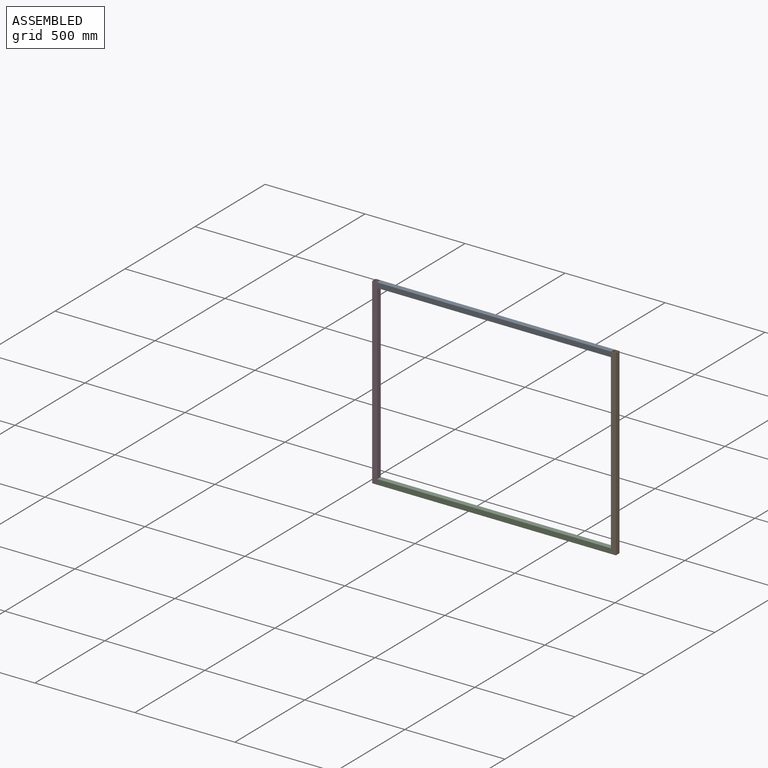
[diagram: assembled view]
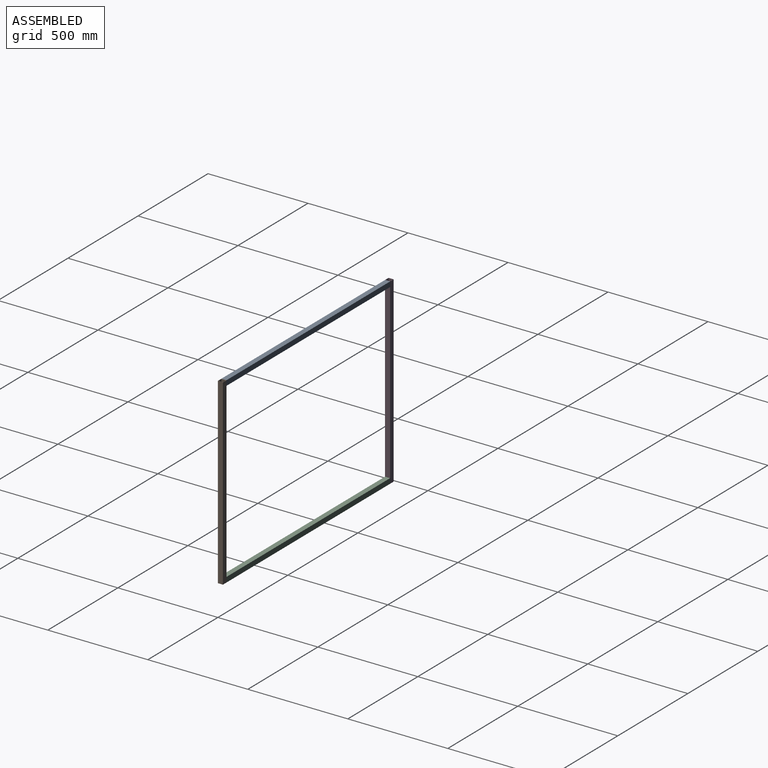
[diagram: assembled view, second angle]
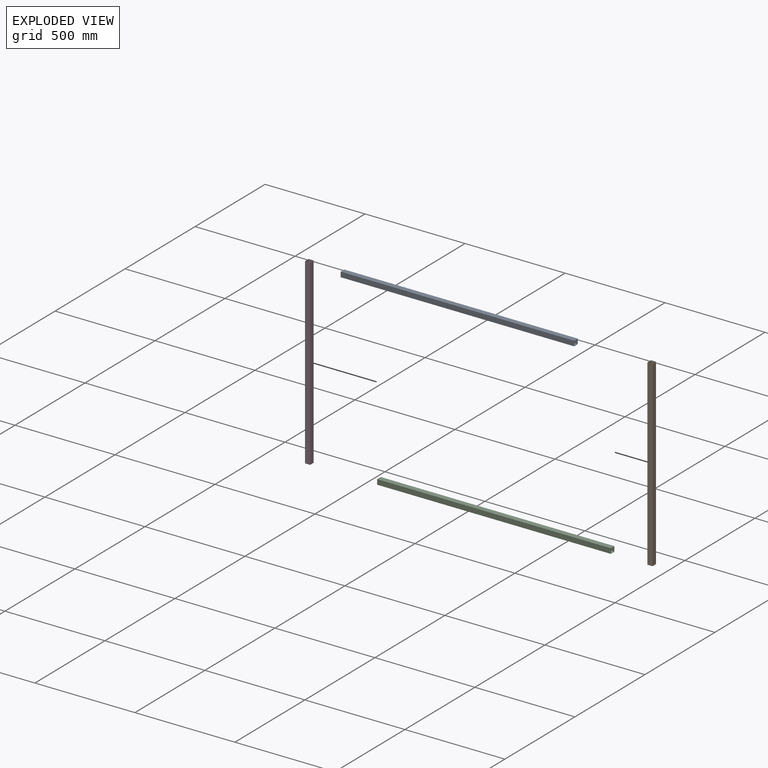
[diagram: exploded view]
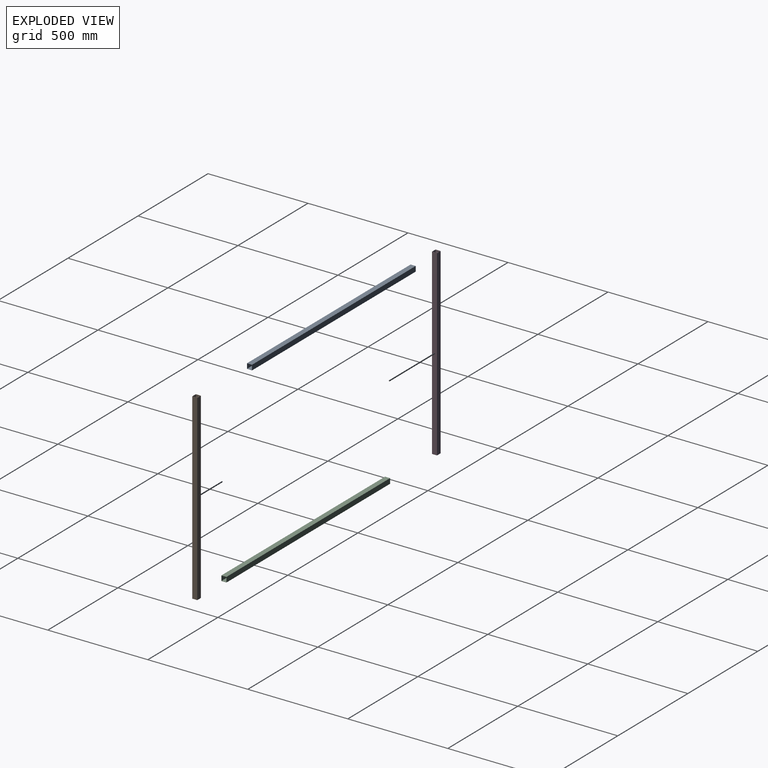
[diagram: exploded view, second angle]
ASSEMBLY  parts=4 mates=3
PART A: 10 faces, bbox 1168.4x25.4x25.4 mm
  f0: plane 1168.4x23.81mm, normal (0,0,-1), area 27822.5mm2, adj f1,f7,f8,f9
  f1: plane 1168.4x23.81mm, normal (0,-1,0), area 27822.5mm2, adj f0,f2,f8,f9
  f2: plane 1168.4x23.81mm, normal (0,0,1), area 27822.5mm2, adj f1,f7,f8,f9
  f3: plane 1168.4x25.4mm, normal (0,1,0), area 29677.4mm2, adj f4,f6,f8,f9
  f4: plane 1168.4x25.4mm, normal (0,0,1), area 29677.4mm2, adj f3,f5,f8,f9
  f5: plane 1168.4x25.4mm, normal (0,-1,0), area 29677.4mm2, adj f4,f6,f8,f9
  f6: plane 1168.4x25.4mm, normal (0,0,-1), area 29677.4mm2, adj f3,f5,f8,f9
  f7: plane 1168.4x23.81mm, normal (0,1,0), area 27822.5mm2, adj f0,f2,f8,f9
  f8: plane 25.4x25.4mm, normal (1,0,0), area 78.1mm2, adj f0,f1,f2,f3,f4,f5,f6,f7
  f9: plane 25.4x25.4mm, normal (-1,0,0), area 78.1mm2, adj f0,f1,f2,f3,f4,f5,f6,f7
PART B: 10 faces, bbox 25.4x25.4x914.4 mm
  f0: plane 914.4x23.81mm, normal (0,-1,0), area 21774.1mm2, adj f1,f7,f8,f9
  f1: plane 914.4x23.81mm, normal (-1,0,0), area 21774.1mm2, adj f0,f2,f8,f9
  f2: plane 914.4x23.81mm, normal (0,1,0), area 21774.1mm2, adj f1,f7,f8,f9
  f3: plane 914.4x25.4mm, normal (1,0,0), area 23225.8mm2, adj f4,f6,f8,f9
  f4: plane 914.4x25.4mm, normal (0,1,0), area 23225.8mm2, adj f3,f5,f8,f9
  f5: plane 914.4x25.4mm, normal (-1,0,0), area 23225.8mm2, adj f4,f6,f8,f9
  f6: plane 914.4x25.4mm, normal (0,-1,0), area 23225.8mm2, adj f3,f5,f8,f9
  f7: plane 914.4x23.81mm, normal (1,0,0), area 21774.1mm2, adj f0,f2,f8,f9
  f8: plane 25.4x25.4mm, normal (0,0,1), area 78.1mm2, adj f0,f1,f2,f3,f4,f5,f6,f7
  f9: plane 25.4x25.4mm, normal (0,0,-1), area 78.1mm2, adj f0,f1,f2,f3,f4,f5,f6,f7
PART C: same geometry as A
PART D: same geometry as B
PLACE A t=(-841.26,-149.38,432.06)mm
PLACE B t=(-244.36,-149.38,-12.44)mm
PLACE C t=(-841.26,-149.38,-456.94)mm
PLACE D t=(-1438.16,-149.38,-12.44)mm
MATE fastened C.f9 <-> D.f3  axis (-1,0,0) through (-1425.46,-162.08,-469.64)mm
MATE fastened D.f3 <-> A.f9  axis (1,0,0) through (-1425.46,-136.68,444.76)mm
MATE fastened A.f8 <-> B.f5  axis (1,0,0) through (-257.06,-136.68,444.76)mm
